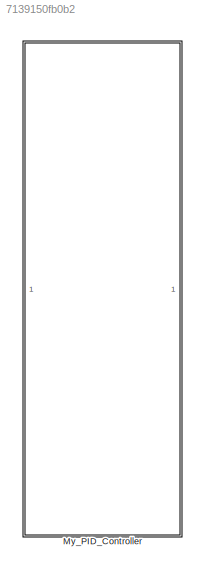
MODEL slx_7139150fb0b2
KIND model
CONFIG AbsTol = auto
CONFIG EnableMultiTasking = on
CONFIG FixedStep = auto
CONFIG MaxStep = auto
CONFIG MinStep = auto
CONFIG RelTol = 1e-3
CONFIG SampleTimeConstraint = Unconstrained
CONFIG SolverName = FixedStepAuto
CONFIG StartTime = 0.0
CONFIG StopTime = 10.0
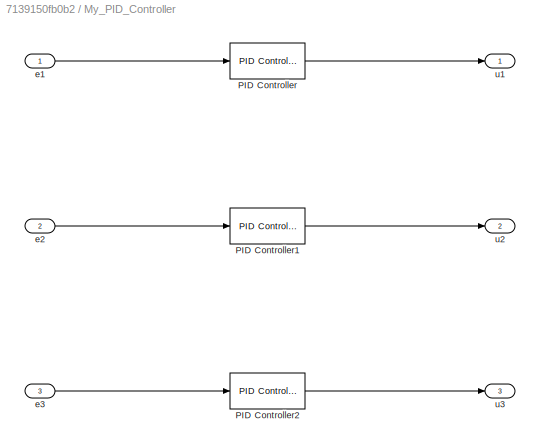
BLOCK [SubSystem] My_PID_Controller
BLOCK [Reference] My_PID_Controller/PID Controller  REF=slpidlib/PID Controller
  LibrarySourceBlock = simulink/Continuous/PID Controller
  SourceBlock = slpidlib/PID Controller
  SourceType = PID 1dof
BLOCK [Reference] My_PID_Controller/PID Controller1  REF=slpidlib/PID Controller
  LibrarySourceBlock = simulink/Continuous/PID Controller
  SourceBlock = slpidlib/PID Controller
  SourceType = PID 1dof
BLOCK [Reference] My_PID_Controller/PID Controller2  REF=slpidlib/PID Controller
  LibrarySourceBlock = simulink/Continuous/PID Controller
  SourceBlock = slpidlib/PID Controller
  SourceType = PID 1dof
BLOCK [Inport] My_PID_Controller/e1
BLOCK [Inport] My_PID_Controller/e2
  Port = 2
BLOCK [Inport] My_PID_Controller/e3
  Port = 3
BLOCK [Outport] My_PID_Controller/u1
BLOCK [Outport] My_PID_Controller/u2
  Port = 2
BLOCK [Outport] My_PID_Controller/u3
  Port = 3
LINE My_PID_Controller/PID Controller1:1 -> My_PID_Controller/u2:1
LINE My_PID_Controller/PID Controller2:1 -> My_PID_Controller/u3:1
LINE My_PID_Controller/PID Controller:1 -> My_PID_Controller/u1:1
LINE My_PID_Controller/e1:1 -> My_PID_Controller/PID Controller:1
LINE My_PID_Controller/e2:1 -> My_PID_Controller/PID Controller1:1
LINE My_PID_Controller/e3:1 -> My_PID_Controller/PID Controller2:1
